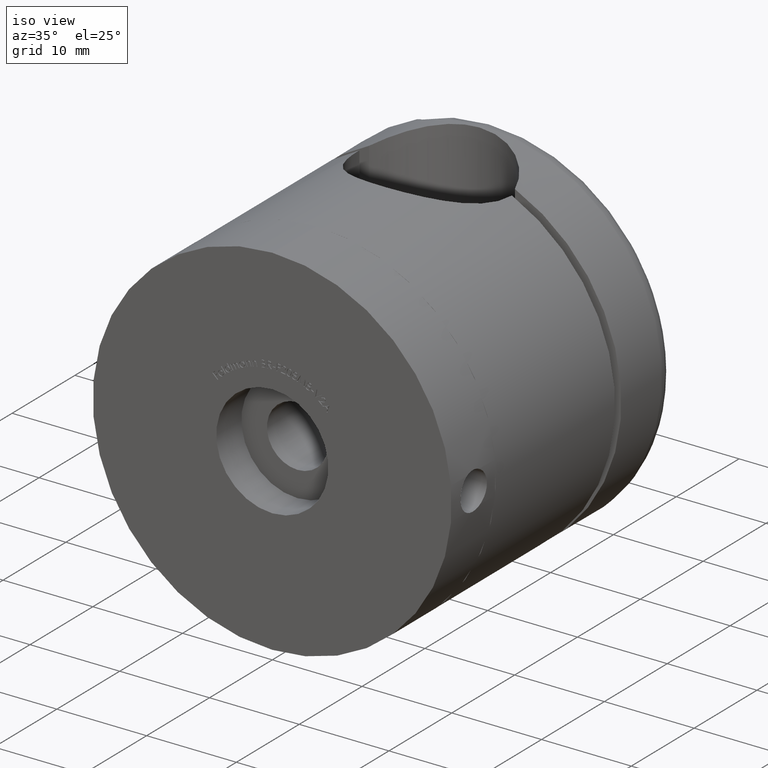
[diagram: clean part render]
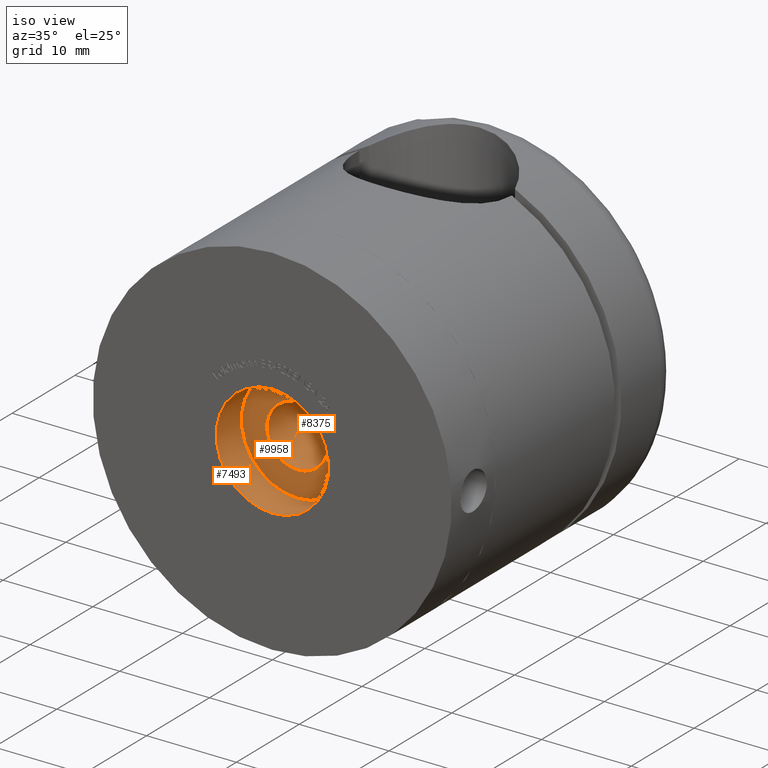
[diagram: same view with one multi-face feature highlighted, each face labeled with its STEP entity id]
A machine part, iso view. The highlighted faces form ONE feature: a stepped (counterbored) hole: 2 coaxial cylindrical walls of radii 3.4 -> 6.25 mm joined by 1 annular planar shoulder face(s). The faces share edges in the B-rep.
Their STEP definitions:
[1] entity #7493 (Cylinder):
#2217 = AXIS2_PLACEMENT_3D ( 'NONE', #15749, #4951, #7717 ) ;
#3383 = AXIS2_PLACEMENT_3D ( 'NONE', #8556, #15300, #4607 ) ;
#3758 = EDGE_CURVE ( 'NONE', #8277, #8277, #15722, .T. ) ;
#3795 = CARTESIAN_POINT ( 'NONE',  ( 0.0000000000000000000, 4.000000000000000000, -6.250000000000000000 ) ) ;
#4132 = AXIS2_PLACEMENT_3D ( 'NONE', #15600, #13035, #7568 ) ;
#4531 = CIRCLE ( 'NONE', #4132, 6.250000000000000000 ) ;
#4607 = DIRECTION ( 'NONE',  ( 0.0000000000000000000, 0.0000000000000000000, -1.000000000000000000 ) ) ;
#4951 = DIRECTION ( 'NONE',  ( -0.0000000000000000000, -1.000000000000000000, -0.0000000000000000000 ) ) ;
#6136 = VERTEX_POINT ( 'NONE', #6641 ) ;
#6641 = CARTESIAN_POINT ( 'NONE',  ( 0.0000000000000000000, 0.0000000000000000000, -6.250000000000000000 ) ) ;
#6910 = EDGE_CURVE ( 'NONE', #6136, #6136, #4531, .T. ) ;
#7493 = ADVANCED_FACE ( 'NONE', ( #15456, #13779 ), #7890, .F. ) ;
#7568 = DIRECTION ( 'NONE',  ( 0.0000000000000000000, 0.0000000000000000000, -1.000000000000000000 ) ) ;
#7717 = DIRECTION ( 'NONE',  ( 0.0000000000000000000, 0.0000000000000000000, -1.000000000000000000 ) ) ;
#7890 = CYLINDRICAL_SURFACE ( 'NONE', #2217, 6.250000000000000000 ) ;
#8277 = VERTEX_POINT ( 'NONE', #3795 ) ;
#8556 = CARTESIAN_POINT ( 'NONE',  ( 0.0000000000000000000, 4.000000000000000000, 0.0000000000000000000 ) ) ;
#11223 = ORIENTED_EDGE ( 'NONE', *, *, #3758, .F. ) ;
#12806 = EDGE_LOOP ( 'NONE', ( #11223 ) ) ;
#13035 = DIRECTION ( 'NONE',  ( 0.0000000000000000000, -1.000000000000000000, 0.0000000000000000000 ) ) ;
#13779 = FACE_OUTER_BOUND ( 'NONE', #15467, .T. ) ;
#15300 = DIRECTION ( 'NONE',  ( 0.0000000000000000000, -1.000000000000000000, 0.0000000000000000000 ) ) ;
#15456 = FACE_OUTER_BOUND ( 'NONE', #12806, .T. ) ;
#15467 = EDGE_LOOP ( 'NONE', ( #15864 ) ) ;
#15600 = CARTESIAN_POINT ( 'NONE',  ( 0.0000000000000000000, 0.0000000000000000000, 0.0000000000000000000 ) ) ;
#15722 = CIRCLE ( 'NONE', #3383, 6.250000000000000000 ) ;
#15749 = CARTESIAN_POINT ( 'NONE',  ( 0.0000000000000000000, 4.000000000000000000, 0.0000000000000000000 ) ) ;
#15864 = ORIENTED_EDGE ( 'NONE', *, *, #6910, .T. ) ;
[2] entity #8375 (Cylinder):
#1726 = VERTEX_POINT ( 'NONE', #12072 ) ;
#1749 = DIRECTION ( 'NONE',  ( 0.0000000000000000000, 0.0000000000000000000, 1.000000000000000000 ) ) ;
#2994 = DIRECTION ( 'NONE',  ( 0.0000000000000000000, -1.000000000000000000, 0.0000000000000000000 ) ) ;
#3377 = CYLINDRICAL_SURFACE ( 'NONE', #10703, 3.399999999999997700 ) ;
#4406 = CARTESIAN_POINT ( 'NONE',  ( 0.0000000000000000000, 13.15000000000000000, 0.0000000000000000000 ) ) ;
#5706 = EDGE_LOOP ( 'NONE', ( #17403 ) ) ;
#6369 = CARTESIAN_POINT ( 'NONE',  ( 0.0000000000000000000, 4.000000000000000000, 0.0000000000000000000 ) ) ;
#6787 = DIRECTION ( 'NONE',  ( -0.0000000000000000000, -1.000000000000000000, -0.0000000000000000000 ) ) ;
#7438 = VERTEX_POINT ( 'NONE', #10630 ) ;
#7810 = DIRECTION ( 'NONE',  ( 0.0000000000000000000, 0.0000000000000000000, -1.000000000000000000 ) ) ;
#8375 = ADVANCED_FACE ( 'NONE', ( #8882, #12870 ), #3377, .F. ) ;
#8882 = FACE_OUTER_BOUND ( 'NONE', #17126, .T. ) ;
#9104 = DIRECTION ( 'NONE',  ( -0.0000000000000000000, -1.000000000000000000, -0.0000000000000000000 ) ) ;
#10279 = AXIS2_PLACEMENT_3D ( 'NONE', #4406, #2994, #1749 ) ;
#10630 = CARTESIAN_POINT ( 'NONE',  ( 0.0000000000000000000, 4.000000000000000000, -3.399999999999998600 ) ) ;
#10703 = AXIS2_PLACEMENT_3D ( 'NONE', #17421, #6787, #16013 ) ;
#11286 = ORIENTED_EDGE ( 'NONE', *, *, #11459, .T. ) ;
#11301 = CIRCLE ( 'NONE', #10279, 3.399999999999997700 ) ;
#11459 = EDGE_CURVE ( 'NONE', #7438, #7438, #14671, .T. ) ;
#12072 = CARTESIAN_POINT ( 'NONE',  ( 0.0000000000000000000, 13.15000000000000000, 3.399999999999997700 ) ) ;
#12870 = FACE_OUTER_BOUND ( 'NONE', #5706, .T. ) ;
#13046 = EDGE_CURVE ( 'NONE', #1726, #1726, #11301, .T. ) ;
#14671 = CIRCLE ( 'NONE', #15532, 3.399999999999998600 ) ;
#15532 = AXIS2_PLACEMENT_3D ( 'NONE', #6369, #9104, #7810 ) ;
#16013 = DIRECTION ( 'NONE',  ( 0.0000000000000000000, 0.0000000000000000000, -1.000000000000000000 ) ) ;
#17126 = EDGE_LOOP ( 'NONE', ( #11286 ) ) ;
#17403 = ORIENTED_EDGE ( 'NONE', *, *, #13046, .F. ) ;
#17421 = CARTESIAN_POINT ( 'NONE',  ( 0.0000000000000000000, 4.000000000000000000, -0.0000000000000000000 ) ) ;
[3] entity #9958 (Plane):
#1658 = ORIENTED_EDGE ( 'NONE', *, *, #11459, .F. ) ;
#2162 = DIRECTION ( 'NONE',  ( 0.0000000000000000000, -1.000000000000000000, 0.0000000000000000000 ) ) ;
#2225 = PLANE ( 'NONE',  #16844 ) ;
#3383 = AXIS2_PLACEMENT_3D ( 'NONE', #8556, #15300, #4607 ) ;
#3758 = EDGE_CURVE ( 'NONE', #8277, #8277, #15722, .T. ) ;
#3795 = CARTESIAN_POINT ( 'NONE',  ( 0.0000000000000000000, 4.000000000000000000, -6.250000000000000000 ) ) ;
#4451 = ORIENTED_EDGE ( 'NONE', *, *, #3758, .T. ) ;
#4607 = DIRECTION ( 'NONE',  ( 0.0000000000000000000, 0.0000000000000000000, -1.000000000000000000 ) ) ;
#4939 = DIRECTION ( 'NONE',  ( 0.0000000000000000000, -0.0000000000000000000, -1.000000000000000000 ) ) ;
#6369 = CARTESIAN_POINT ( 'NONE',  ( 0.0000000000000000000, 4.000000000000000000, 0.0000000000000000000 ) ) ;
#6582 = EDGE_LOOP ( 'NONE', ( #4451 ) ) ;
#7438 = VERTEX_POINT ( 'NONE', #10630 ) ;
#7810 = DIRECTION ( 'NONE',  ( 0.0000000000000000000, 0.0000000000000000000, -1.000000000000000000 ) ) ;
#8277 = VERTEX_POINT ( 'NONE', #3795 ) ;
#8556 = CARTESIAN_POINT ( 'NONE',  ( 0.0000000000000000000, 4.000000000000000000, 0.0000000000000000000 ) ) ;
#9104 = DIRECTION ( 'NONE',  ( -0.0000000000000000000, -1.000000000000000000, -0.0000000000000000000 ) ) ;
#9958 = ADVANCED_FACE ( 'NONE', ( #14691, #15114 ), #2225, .T. ) ;
#10023 = EDGE_LOOP ( 'NONE', ( #1658 ) ) ;
#10303 = CARTESIAN_POINT ( 'NONE',  ( 0.0000000000000000000, 4.000000000000000000, 0.0000000000000000000 ) ) ;
#10630 = CARTESIAN_POINT ( 'NONE',  ( 0.0000000000000000000, 4.000000000000000000, -3.399999999999998600 ) ) ;
#11459 = EDGE_CURVE ( 'NONE', #7438, #7438, #14671, .T. ) ;
#14671 = CIRCLE ( 'NONE', #15532, 3.399999999999998600 ) ;
#14691 = FACE_BOUND ( 'NONE', #10023, .T. ) ;
#15114 = FACE_OUTER_BOUND ( 'NONE', #6582, .T. ) ;
#15300 = DIRECTION ( 'NONE',  ( 0.0000000000000000000, -1.000000000000000000, 0.0000000000000000000 ) ) ;
#15532 = AXIS2_PLACEMENT_3D ( 'NONE', #6369, #9104, #7810 ) ;
#15722 = CIRCLE ( 'NONE', #3383, 6.250000000000000000 ) ;
#16844 = AXIS2_PLACEMENT_3D ( 'NONE', #10303, #2162, #4939 ) ;